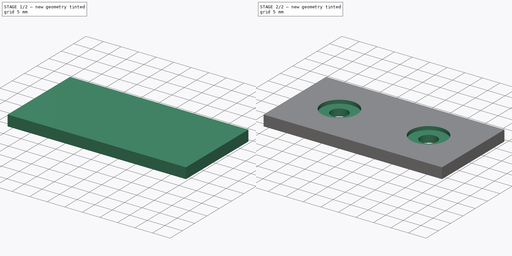
[diagram: build sequence overview — one tinted view per stage of 2, left to right]
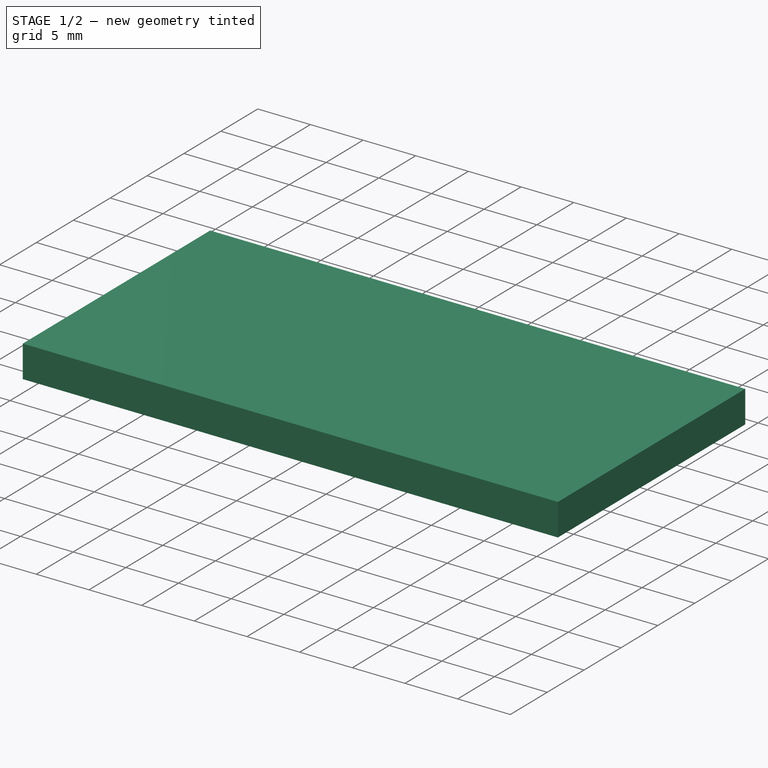
[diagram: stage 1 of 2 — iso view after this stage's code; geometry added in this stage tinted green]
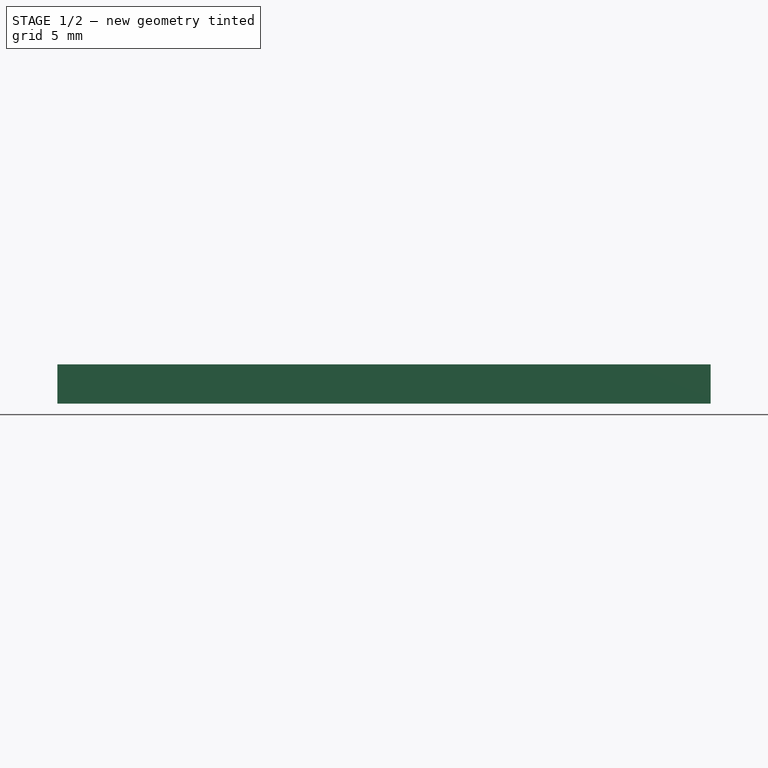
[diagram: stage 1 of 2 — front view after this stage's code; geometry added in this stage tinted green]
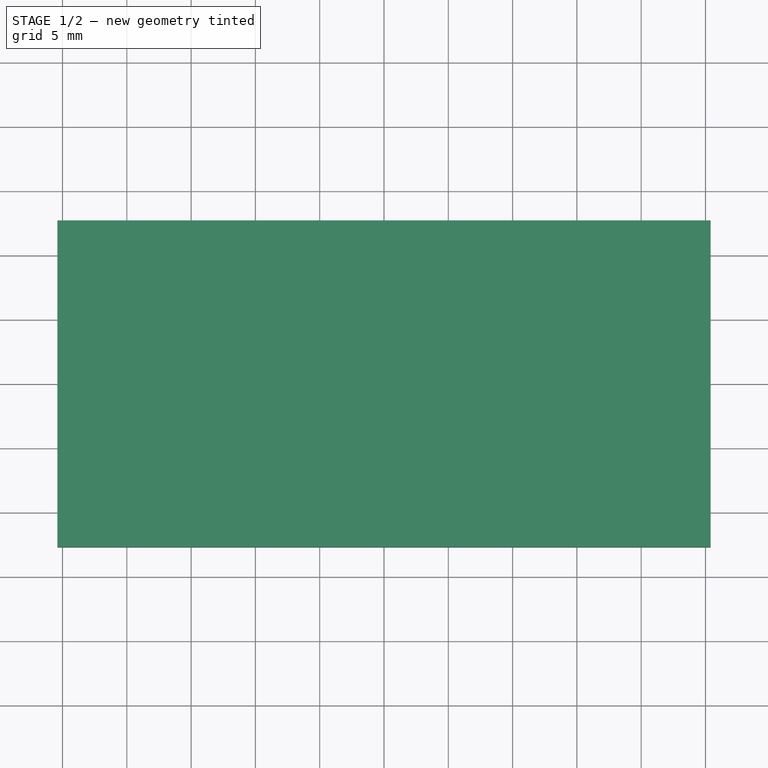
[diagram: stage 1 of 2 — top view after this stage's code; geometry added in this stage tinted green]
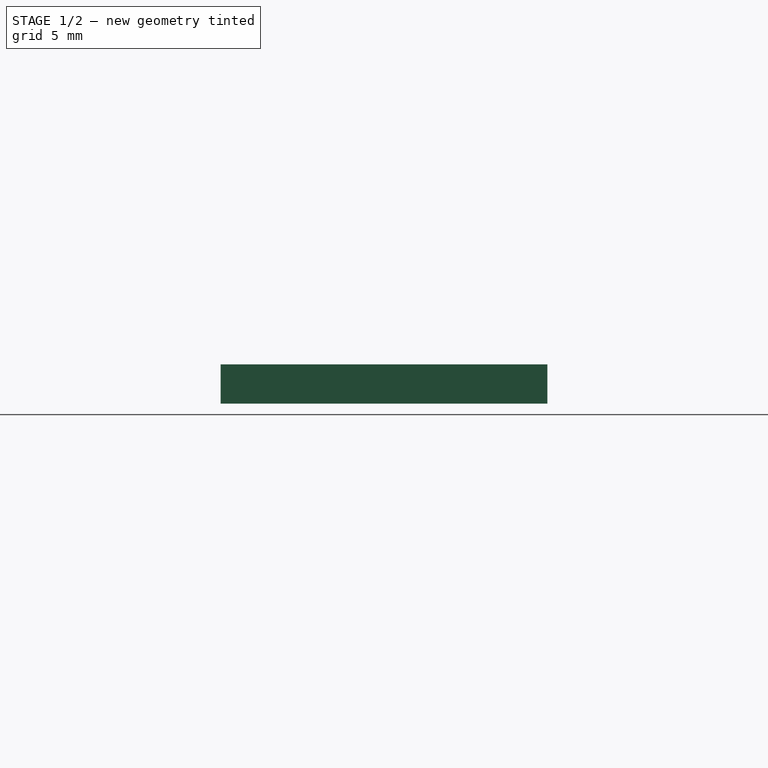
[diagram: stage 1 of 2 — right view after this stage's code; geometry added in this stage tinted green]
FCSTD DOCUMENT  (FreeCAD 0.18R16117 (Git))
Label: CLIP_l
License: All rights reserved
LicenseURL: http://en.wikipedia.org/wiki/All_rights_reserved
objects: Sketcher::SketchObject×2, PartDesign::Pad×1, PartDesign::Hole×1, PartDesign::Body×1
note: 7 computed .brp shape members not serialized (recipe doc carries the construction recipe); baked Part::Feature solids carry a one-line shape summary decoded from their .brp

FEATURE [Sketcher::SketchObject] Sketch
  MapMode = 5
  Support = -> [XY_Plane]
  sketch-geometry (6):
    g0: LineSegment StartX=-25.4 StartY=12.7 StartZ=0 EndX=25.4 EndY=12.7 EndZ=0
    g1: LineSegment StartX=25.4 StartY=12.7 StartZ=0 EndX=25.4 EndY=-12.7 EndZ=0
    g2: LineSegment StartX=25.4 StartY=-12.7 StartZ=0 EndX=-25.4 EndY=-12.7 EndZ=0
    g3: LineSegment StartX=-25.4 StartY=-12.7 StartZ=0 EndX=-25.4 EndY=12.7 EndZ=0
    g4: LineSegment [constr] StartX=-25.4 StartY=12.7 StartZ=0 EndX=25.4 EndY=-12.7 EndZ=0
    g5: LineSegment [constr] StartX=-25.4 StartY=-12.7 StartZ=0 EndX=25.4 EndY=12.7 EndZ=0
  constraints (16):
    c: Coincident(g0,g1)
    c: Coincident(g1,g2)
    c: Coincident(g2,g3)
    c: Coincident(g3,g0)
    c: Horizontal(g0)
    c: Horizontal(g2)
    c: Vertical(g1)
    c: Vertical(g3)
    c: Coincident(g4,g0)
    c: Coincident(g4,g1)
    c: Coincident(g5,g2)
    c: Coincident(g5,g0)
    c: PointOnObject(g-1,g5)
    c: PointOnObject(g-1,g4)
    c: Distance(g0) = 50.8
    c: Distance(g1) = 25.4
FEATURE [PartDesign::Pad] Pad
  Length = 3.048
  Length2 = 100
  Profile = -> Sketch
  Type = 0
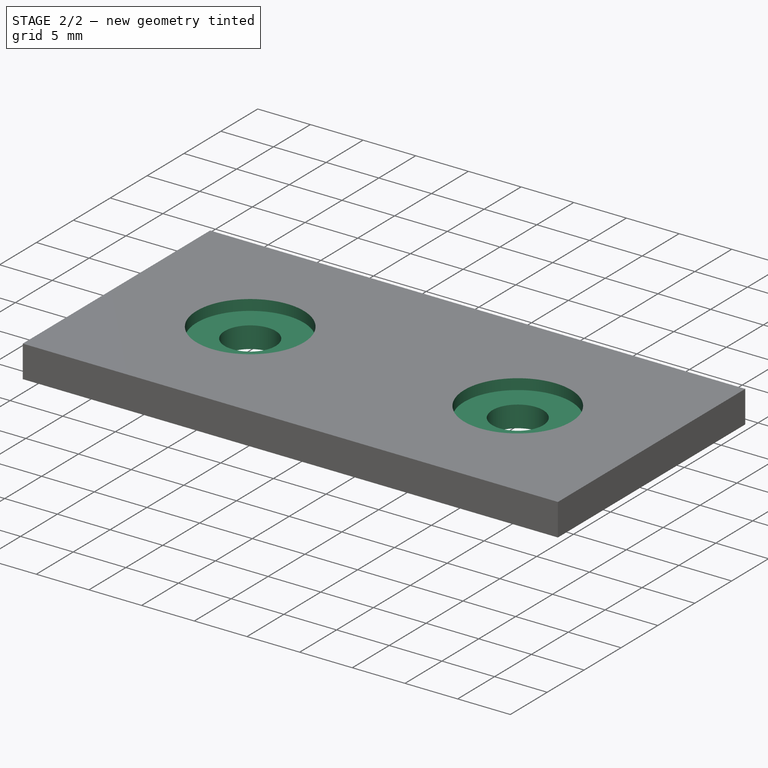
[diagram: stage 2 of 2 — iso view after this stage's code; geometry added in this stage tinted green]
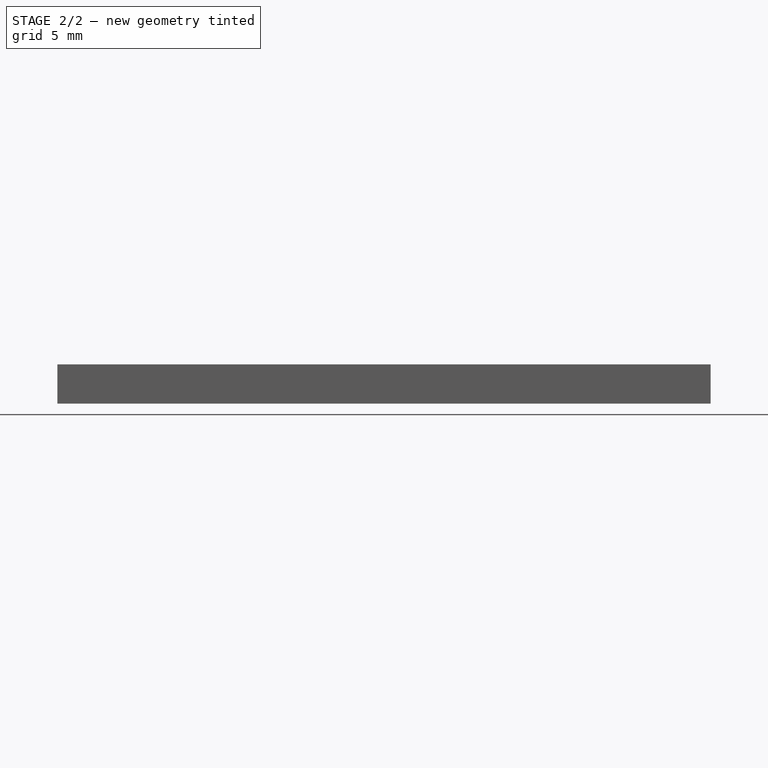
[diagram: stage 2 of 2 — front view after this stage's code; geometry added in this stage tinted green]
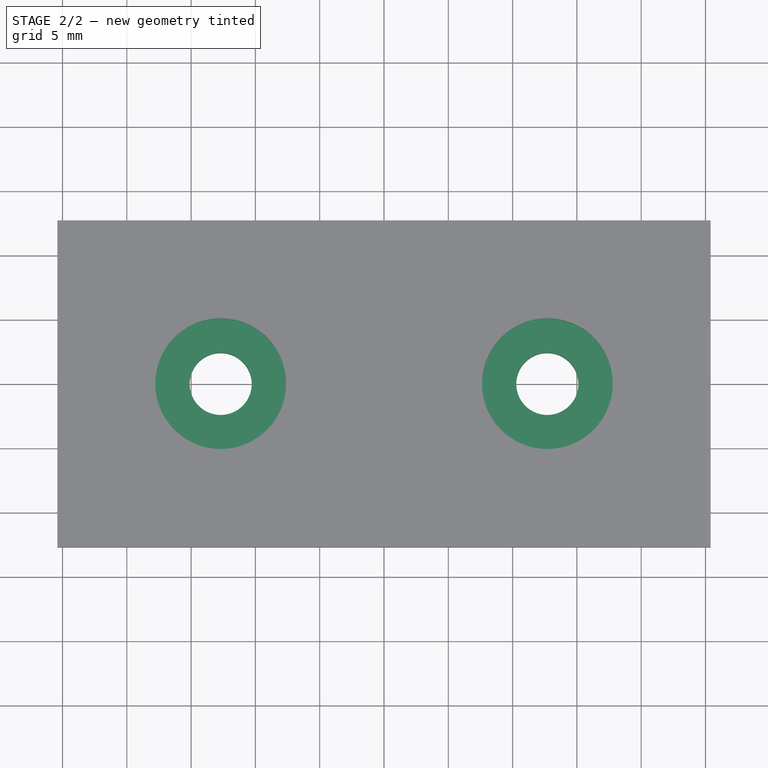
[diagram: stage 2 of 2 — top view after this stage's code; geometry added in this stage tinted green]
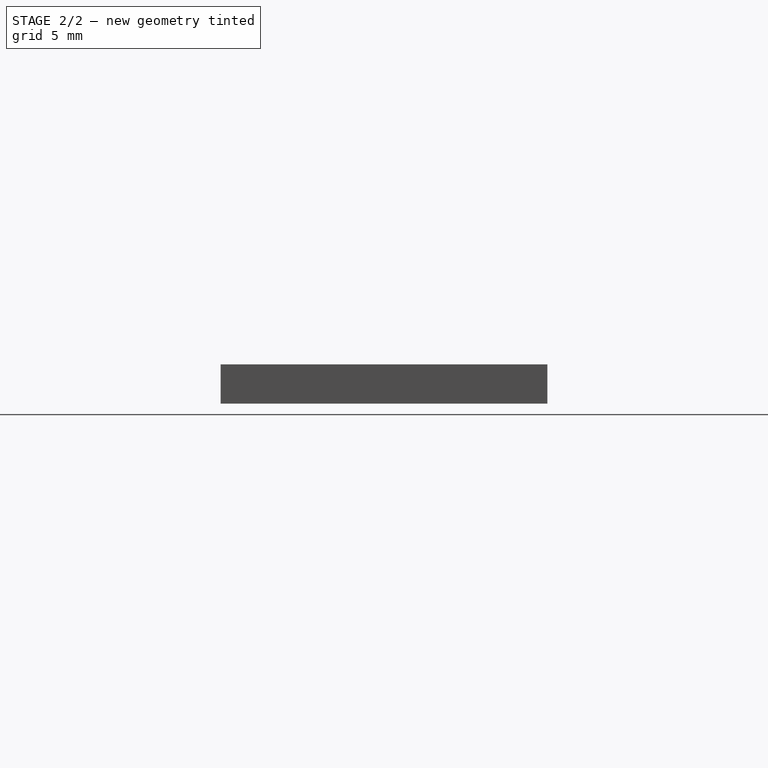
[diagram: stage 2 of 2 — right view after this stage's code; geometry added in this stage tinted green]
FEATURE [Sketcher::SketchObject] Sketch001
  ExternalGeometry = -> [Pad]
  MapMode = 5
  Placement = pos=(0,0,3.048) rot=(0,0,1;0rad)
  Support = -> [Pad]
  sketch-geometry (14):
    g0: LineSegment [constr] StartX=-25.4 StartY=12.7 StartZ=0 EndX=0 EndY=12.7 EndZ=0
    g1: LineSegment [constr] StartX=0 StartY=12.7 StartZ=0 EndX=0 EndY=-12.7 EndZ=0
    g2: LineSegment [constr] StartX=0 StartY=-12.7 StartZ=0 EndX=-25.4 EndY=-12.7 EndZ=0
    g3: LineSegment [constr] StartX=-25.4 StartY=-12.7 StartZ=0 EndX=-25.4 EndY=12.7 EndZ=0
    g4: LineSegment [constr] StartX=0 StartY=12.7 StartZ=0 EndX=25.4 EndY=12.7 EndZ=0
    g5: LineSegment [constr] StartX=25.4 StartY=12.7 StartZ=0 EndX=25.4 EndY=-12.7 EndZ=0
    g6: LineSegment [constr] StartX=25.4 StartY=-12.7 StartZ=0 EndX=0 EndY=-12.7 EndZ=0
    g7: LineSegment [constr] StartX=0 StartY=-12.7 StartZ=0 EndX=0 EndY=12.7 EndZ=0
    g8: LineSegment [constr] StartX=-25.4 StartY=12.7 StartZ=0 EndX=0 EndY=-12.7 EndZ=0
    g9: LineSegment [constr] StartX=-25.4 StartY=-12.7 StartZ=0 EndX=0 EndY=12.7 EndZ=0
    g10: LineSegment [constr] StartX=0 StartY=12.7 StartZ=0 EndX=25.4 EndY=-12.7 EndZ=0
    g11: LineSegment [constr] StartX=0 StartY=-12.7 StartZ=0 EndX=25.4 EndY=12.7 EndZ=0
    g12: Circle CenterX=-12.7 CenterY=-8e-16 CenterZ=0 NormalX=0 NormalY=0 NormalZ=1 AngleXU=0 Radius=2.54
    g13: Circle CenterX=12.7 CenterY=-5.6e-15 CenterZ=0 NormalX=0 NormalY=0 NormalZ=1 AngleXU=0 Radius=2.54
  constraints (34):
    c: Coincident(g0,g1)
    c: Coincident(g1,g2)
    c: Coincident(g2,g3)
    c: Coincident(g3,g0)
    c: Horizontal(g0)
    c: Horizontal(g2)
    c: Vertical(g1)
    c: Coincident(g0,g-3)
    c: Coincident(g2,g-3)
    c: Coincident(g4,g5)
    c: Coincident(g5,g6)
    c: Coincident(g6,g7)
    c: Coincident(g7,g4)
    c: Horizontal(g6)
    c: Vertical(g7)
    c: Coincident(g4,g0)
    c: Coincident(g5,g-4)
    c: Equal(g4,g0)
    c: Equal(g3,g5)
    c: Equal(g5,g4)
    c: Coincident(g8,g0)
    c: Coincident(g8,g1)
    c: Coincident(g9,g2)
    c: Coincident(g9,g0)
    c: Coincident(g10,g0)
    c: Coincident(g10,g5)
    c: Coincident(g11,g1)
    c: Coincident(g11,g4)
    c: PointOnObject(g13,g10)
    c: PointOnObject(g13,g11)
    c: PointOnObject(g12,g8)
    c: PointOnObject(g12,g9)
    c: Equal(g12,g13)
    c: Diameter(g12) = 5.08
FEATURE [PartDesign::Hole] Hole
  BaseFeature = -> Pad
  Depth = 635
  DepthType = 0
  Diameter = 4.826
  DrillPoint = 1
  DrillPointAngle = 118
  HoleCutCountersinkAngle = 90
  HoleCutDepth = 1.016
  HoleCutDiameter = 10.16
  HoleCutType = 1
  ModelActualThread = false
  Profile = -> Sketch001
  Tapered = false
  TaperedAngle = 90
  ThreadAngle = 0
  ThreadClass = 0
  ThreadCutOffInner = 0
  ThreadCutOffOuter = 0
  ThreadDirection = 0
  ThreadFit = 0
  ThreadPitch = 0
  ThreadSize = 0
  ThreadType = 0
  Threaded = false
FEATURE [PartDesign::Body] Body
  Group = -> [Sketch,Pad,Sketch001,Hole]
  Origin = -> Origin
  Tip = -> Hole
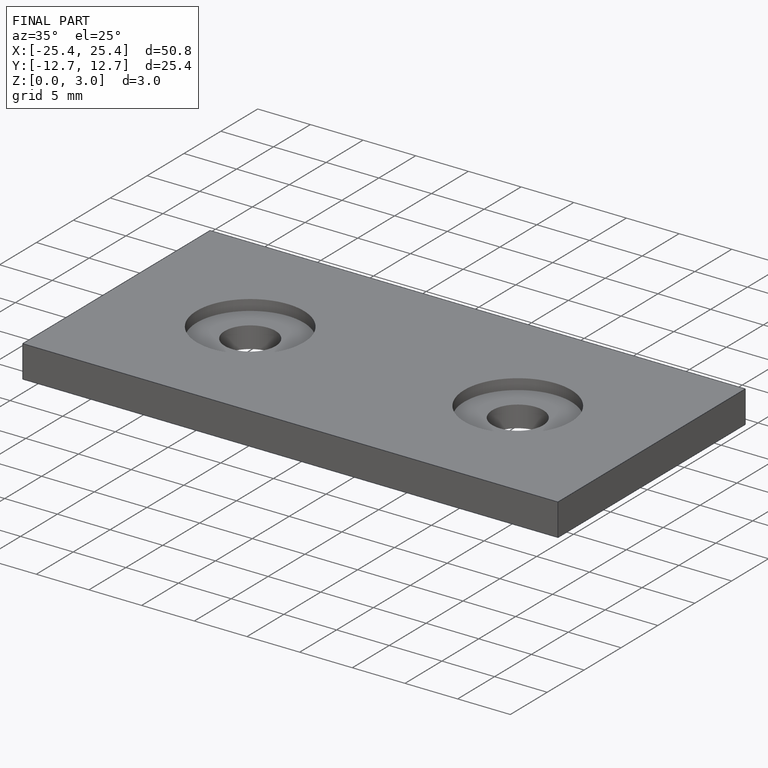
[diagram: finished part — iso view with bounding-box wireframe]
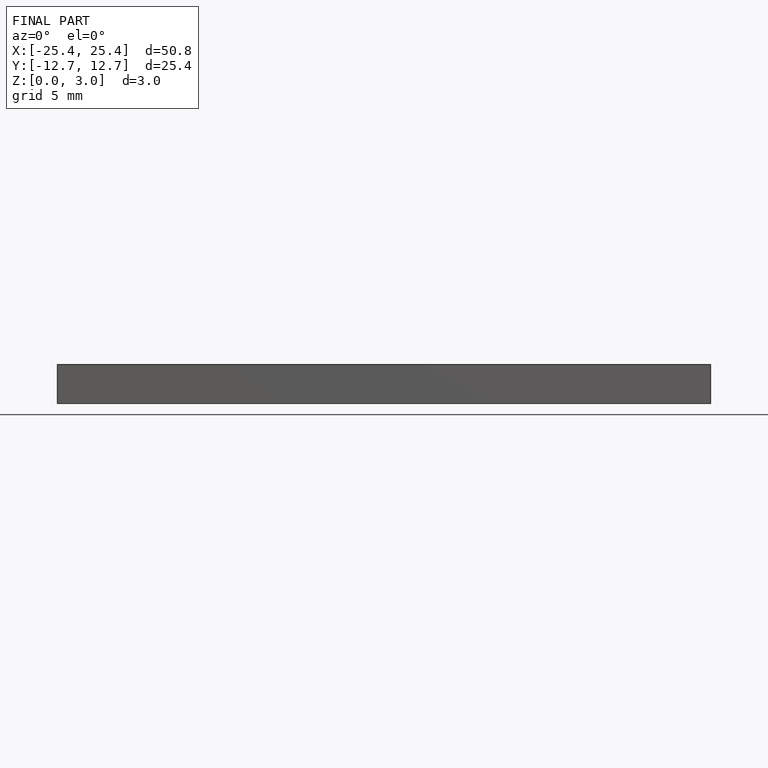
[diagram: finished part — front view with bounding-box wireframe]
